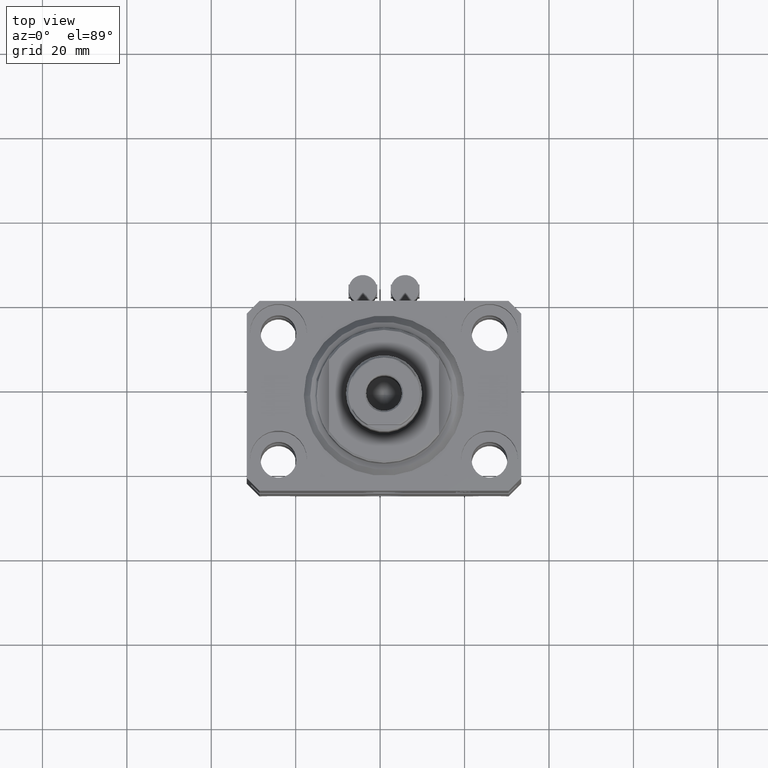
[diagram: clean part render]
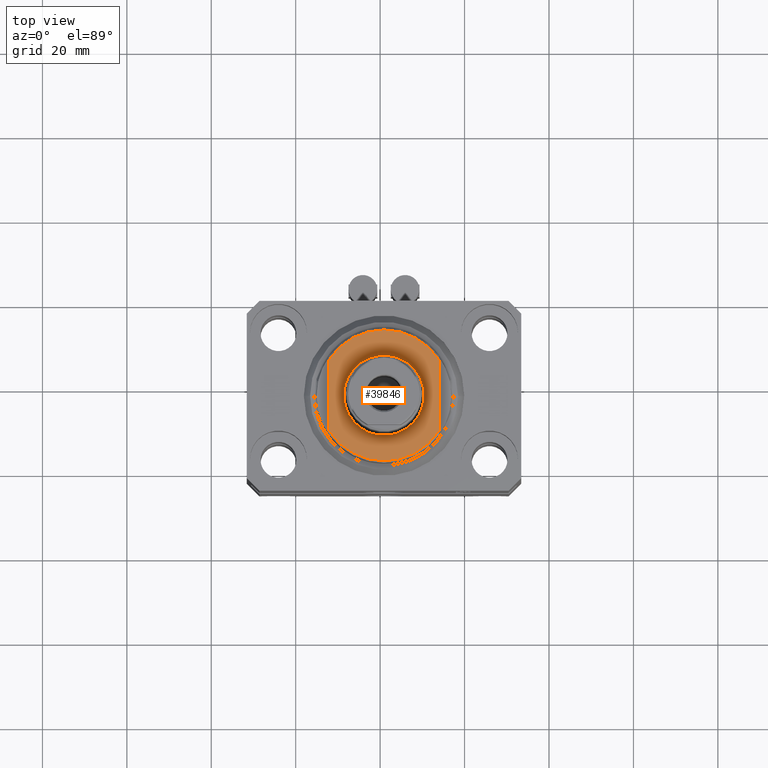
[diagram: same view with one face highlighted and labeled with its STEP entity id]
A machine part, top view. The second image highlights one B-rep face of the part: STEP entity #39846.
In plain terms, the highlighted planar face has unit normal (0, 0, 1).
Its self-contained STEP definition (entity closure, byte-faithful):
#832 = DIRECTION ( 'NONE',  ( -1.000000000000000000, 0.000000000000000000, 0.000000000000000000 ) ) ;
#1416 = AXIS2_PLACEMENT_3D ( 'NONE', #42066, #21201, #832 ) ;
#1987 = CARTESIAN_POINT ( 'NONE',  ( -9.500000000000001776, 0.000000000000000000, -6.500000000000000000 ) ) ;
#2448 = FACE_BOUND ( 'NONE', #37218, .T. ) ;
#2561 = ORIENTED_EDGE ( 'NONE', *, *, #18256, .T. ) ;
#2785 = CARTESIAN_POINT ( 'NONE',  ( 0.000000000000000000, 0.000000000000000000, -6.500000000000000000 ) ) ;
#3704 = AXIS2_PLACEMENT_3D ( 'NONE', #23697, #16598, #31876 ) ;
#5105 = DIRECTION ( 'NONE',  ( -0.000000000000000000, -0.000000000000000000, 1.000000000000000000 ) ) ;
#6686 = EDGE_CURVE ( 'NONE', #42570, #37182, #42202, .T. ) ;
#6776 = ORIENTED_EDGE ( 'NONE', *, *, #44965, .T. ) ;
#8183 = CARTESIAN_POINT ( 'NONE',  ( -13.00000000000000000, -8.440971508067137918, -6.500000000000000000 ) ) ;
#8639 = CARTESIAN_POINT ( 'NONE',  ( 0.000000000000000000, 0.000000000000000000, -6.500000000000000000 ) ) ;
#8709 = CARTESIAN_POINT ( 'NONE',  ( 13.00000000000000000, -8.440971508067137918, -6.500000000000000000 ) ) ;
#11494 = LINE ( 'NONE', #18362, #16428 ) ;
#12526 = FACE_OUTER_BOUND ( 'NONE', #33692, .T. ) ;
#13120 = CARTESIAN_POINT ( 'NONE',  ( 13.00000000000000000, 8.440971508067137918, -6.500000000000000000 ) ) ;
#13796 = VERTEX_POINT ( 'NONE', #8183 ) ;
#14956 = CARTESIAN_POINT ( 'NONE',  ( -13.00000000000000000, -43.08131845707602992, -6.500000000000000000 ) ) ;
#16176 = PLANE ( 'NONE',  #16994 ) ;
#16428 = VECTOR ( 'NONE', #43109, 1000.000000000000000 ) ;
#16598 = DIRECTION ( 'NONE',  ( -0.000000000000000000, -0.000000000000000000, 1.000000000000000000 ) ) ;
#16688 = VERTEX_POINT ( 'NONE', #8709 ) ;
#16745 = DIRECTION ( 'NONE',  ( -1.000000000000000000, 0.000000000000000000, 0.000000000000000000 ) ) ;
#16994 = AXIS2_PLACEMENT_3D ( 'NONE', #8639, #44153, #23500 ) ;
#17940 = LINE ( 'NONE', #14956, #23638 ) ;
#18256 = EDGE_CURVE ( 'NONE', #16688, #13796, #24083, .T. ) ;
#18362 = CARTESIAN_POINT ( 'NONE',  ( 13.00000000000000000, -43.08131845707602992, -6.500000000000000000 ) ) ;
#19961 = DIRECTION ( 'NONE',  ( 0.000000000000000000, 0.000000000000000000, -1.000000000000000000 ) ) ;
#20885 = EDGE_CURVE ( 'NONE', #37182, #42570, #36604, .T. ) ;
#21201 = DIRECTION ( 'NONE',  ( 0.000000000000000000, 0.000000000000000000, -1.000000000000000000 ) ) ;
#23500 = DIRECTION ( 'NONE',  ( -1.000000000000000000, 0.000000000000000000, -0.000000000000000000 ) ) ;
#23638 = VECTOR ( 'NONE', #28718, 1000.000000000000000 ) ;
#23697 = CARTESIAN_POINT ( 'NONE',  ( 0.000000000000000000, 0.000000000000000000, -6.500000000000000000 ) ) ;
#23865 = VERTEX_POINT ( 'NONE', #13120 ) ;
#24083 = CIRCLE ( 'NONE', #1416, 15.50000000000003730 ) ;
#24311 = ORIENTED_EDGE ( 'NONE', *, *, #20885, .T. ) ;
#26255 = ORIENTED_EDGE ( 'NONE', *, *, #40514, .T. ) ;
#27303 = AXIS2_PLACEMENT_3D ( 'NONE', #2785, #19961, #16745 ) ;
#28718 = DIRECTION ( 'NONE',  ( -0.000000000000000000, -1.000000000000000000, -0.000000000000000000 ) ) ;
#30931 = VERTEX_POINT ( 'NONE', #32951 ) ;
#31876 = DIRECTION ( 'NONE',  ( -1.000000000000000000, 0.000000000000000000, 0.000000000000000000 ) ) ;
#32951 = CARTESIAN_POINT ( 'NONE',  ( -13.00000000000000000, 8.440971508067137918, -6.500000000000000000 ) ) ;
#33049 = DIRECTION ( 'NONE',  ( -1.000000000000000000, 0.000000000000000000, 0.000000000000000000 ) ) ;
#33265 = CARTESIAN_POINT ( 'NONE',  ( 9.500000000000001776, 1.163414459189985880E-15, -6.500000000000000000 ) ) ;
#33692 = EDGE_LOOP ( 'NONE', ( #26255, #6776, #2561, #41509 ) ) ;
#35068 = ORIENTED_EDGE ( 'NONE', *, *, #6686, .T. ) ;
#36494 = CARTESIAN_POINT ( 'NONE',  ( 0.000000000000000000, 0.000000000000000000, -6.500000000000000000 ) ) ;
#36604 = CIRCLE ( 'NONE', #3704, 9.500000000000001776 ) ;
#37182 = VERTEX_POINT ( 'NONE', #33265 ) ;
#37218 = EDGE_LOOP ( 'NONE', ( #35068, #24311 ) ) ;
#38534 = AXIS2_PLACEMENT_3D ( 'NONE', #36494, #5105, #33049 ) ;
#38996 = CIRCLE ( 'NONE', #27303, 15.50000000000003730 ) ;
#39846 = ADVANCED_FACE ( 'NONE', ( #2448, #12526 ), #16176, .T. ) ;
#40411 = EDGE_CURVE ( 'NONE', #30931, #13796, #17940, .T. ) ;
#40514 = EDGE_CURVE ( 'NONE', #30931, #23865, #38996, .T. ) ;
#41509 = ORIENTED_EDGE ( 'NONE', *, *, #40411, .F. ) ;
#42066 = CARTESIAN_POINT ( 'NONE',  ( 0.000000000000000000, 0.000000000000000000, -6.500000000000000000 ) ) ;
#42202 = CIRCLE ( 'NONE', #38534, 9.500000000000001776 ) ;
#42570 = VERTEX_POINT ( 'NONE', #1987 ) ;
#43109 = DIRECTION ( 'NONE',  ( 0.000000000000000000, -1.000000000000000000, -0.000000000000000000 ) ) ;
#44153 = DIRECTION ( 'NONE',  ( 0.000000000000000000, 0.000000000000000000, -1.000000000000000000 ) ) ;
#44965 = EDGE_CURVE ( 'NONE', #23865, #16688, #11494, .T. ) ;